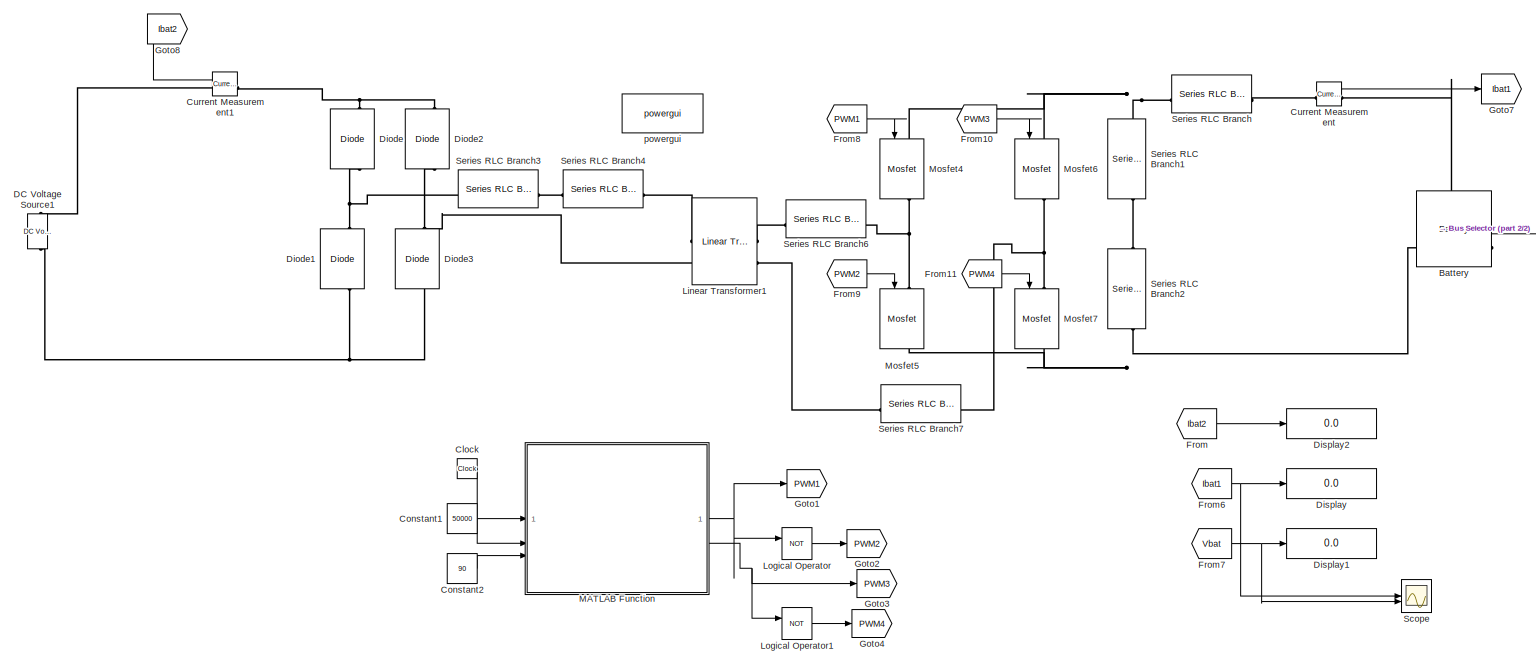
[diagram: root canvas - part 1/2, most of the canvas]
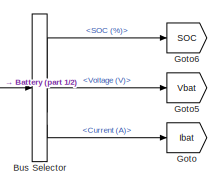
[diagram: root canvas - part 2/2, middle right region]
MODEL slx_e6c360ace916
KIND model
CONFIG AbsTol = auto
CONFIG EnableMultiTasking = off
CONFIG FixedStep = auto
CONFIG MaxStep = auto
CONFIG MinStep = auto
CONFIG RelTol = 1e-3
CONFIG SampleTimeConstraint = Unconstrained
CONFIG SolverName = VariableStepAuto
CONFIG StartTime = 0.0
CONFIG StopTime = 5
BLOCK [Reference] Battery  REF=spsBatteryLib/Battery
  LibrarySourceBlock = sps_lib/Sources/Battery
  NameLocation = top
  SourceBlock = spsBatteryLib/Battery
  SourceType = Battery
BLOCK [BusSelector] Bus Selector
  OutputSignals = SOC (%),Voltage (V),Current (A)
BLOCK [Clock] Clock
  Decimation = 1
BLOCK [Constant] Constant1
  Value = 50000
BLOCK [Constant] Constant2
  Value = 90
BLOCK [Reference] Current Measurement  REF=spsCurrentMeasurementLib/Current Measurement
  LibrarySourceBlock = sps_lib/Sensors and Measurements/Current Measurement
  SourceBlock = spsCurrentMeasurementLib/Current Measurement
  SourceType = Current Measurement
  UserDataPersistent = on
BLOCK [Reference] Current Measurement1  REF=spsCurrentMeasurementLib/Current Measurement
  LibrarySourceBlock = sps_lib/Sensors and Measurements/Current Measurement
  NameLocation = top
  SourceBlock = spsCurrentMeasurementLib/Current Measurement
  SourceType = Current Measurement
  UserDataPersistent = on
BLOCK [Reference] DC Voltage Source1  REF=spsDCVoltageSourceLib/DC Voltage Source
  LibrarySourceBlock = sps_lib/Sources/DC Voltage Source
  SourceBlock = spsDCVoltageSourceLib/DC Voltage Source
  SourceType = DC Voltage Source
BLOCK [Reference] Diode  REF=spsDiodeLib/Diode
  LibrarySourceBlock = sps_lib/Power Electronics/Diode
  NameLocation = right
  SourceBlock = spsDiodeLib/Diode
  SourceType = Diode
BLOCK [Reference] Diode1  REF=spsDiodeLib/Diode
  LibrarySourceBlock = sps_lib/Power Electronics/Diode
  NameLocation = right
  SourceBlock = spsDiodeLib/Diode
  SourceType = Diode
BLOCK [Reference] Diode2  REF=spsDiodeLib/Diode
  LibrarySourceBlock = sps_lib/Power Electronics/Diode
  NameLocation = right
  SourceBlock = spsDiodeLib/Diode
  SourceType = Diode
BLOCK [Reference] Diode3  REF=spsDiodeLib/Diode
  LibrarySourceBlock = sps_lib/Power Electronics/Diode
  NameLocation = right
  SourceBlock = spsDiodeLib/Diode
  SourceType = Diode
BLOCK [Display] Display
  Decimation = 1
BLOCK [Display] Display1
  Decimation = 1
BLOCK [Display] Display2
  Decimation = 1
BLOCK [From] From
  GotoTag = Ibat2
BLOCK [From] From10
  GotoTag = PWM3
BLOCK [From] From11
  GotoTag = PWM4
BLOCK [From] From6
  GotoTag = Ibat1
BLOCK [From] From7
  GotoTag = Vbat
BLOCK [From] From8
  GotoTag = PWM1
BLOCK [From] From9
  GotoTag = PWM2
BLOCK [Goto] Goto
  GotoTag = Ibat
BLOCK [Goto] Goto1
  GotoTag = PWM1
  NameLocation = left
BLOCK [Goto] Goto2
  GotoTag = PWM2
BLOCK [Goto] Goto3
  GotoTag = PWM3
BLOCK [Goto] Goto4
  GotoTag = PWM4
BLOCK [Goto] Goto5
  GotoTag = Vbat
BLOCK [Goto] Goto6
  GotoTag = SOC
BLOCK [Goto] Goto7
  GotoTag = Ibat1
BLOCK [Goto] Goto8
  GotoTag = Ibat2
BLOCK [Reference] Linear Transformer1  REF=spsLinearTransformerLib/Linear Transformer
  LibrarySourceBlock = sps_lib/Power Grid Elements/Linear Transformer
  SourceBlock = spsLinearTransformerLib/Linear Transformer
  SourceType = Linear Transformer
BLOCK [Logic] Logical Operator
  AllPortsSameDT = off
  Operator = NOT
  OutDataTypeStr = boolean
BLOCK [Logic] Logical Operator1
  AllPortsSameDT = off
  Operator = NOT
  OutDataTypeStr = boolean
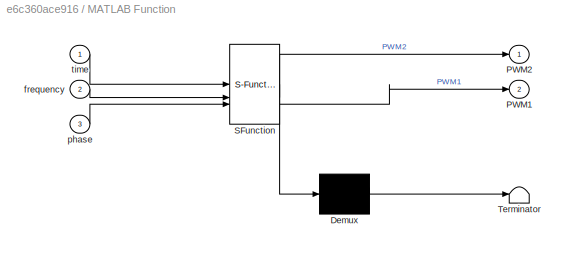
BLOCK [SubSystem] MATLAB Function
  ErrorFcn = Stateflow.Translate.translate
  PermitHierarchicalResolution = ExplicitOnly
  SFBlockType = MATLAB Function
  TreatAsAtomicUnit = on
BLOCK [Demux] MATLAB Function/ Demux 
  Outputs = 1
BLOCK [S-Function] MATLAB Function/ SFunction 
  EnableBusSupport = off
  FunctionName = sf_sfun
  PortCounts = [3 3]
  SFcnIsStateOwnerBlock = off
  SFunctionDeploymentMode = off
  Tag = Stateflow S-Function 2
BLOCK [Terminator] MATLAB Function/ Terminator 
BLOCK [Outport] MATLAB Function/PWM1
  Port = 2
BLOCK [Outport] MATLAB Function/PWM2
BLOCK [Inport] MATLAB Function/frequency
  Port = 2
BLOCK [Inport] MATLAB Function/phase
  Port = 3
BLOCK [Inport] MATLAB Function/time
BLOCK [Reference] Mosfet4  REF=spsMosfetLib/Mosfet
  LibrarySourceBlock = sps_lib/Power Electronics/Mosfet
  NameLocation = left
  SourceBlock = spsMosfetLib/Mosfet
  SourceType = Mosfet
BLOCK [Reference] Mosfet5  REF=spsMosfetLib/Mosfet
  LibrarySourceBlock = sps_lib/Power Electronics/Mosfet
  NameLocation = left
  SourceBlock = spsMosfetLib/Mosfet
  SourceType = Mosfet
BLOCK [Reference] Mosfet6  REF=spsMosfetLib/Mosfet
  LibrarySourceBlock = sps_lib/Power Electronics/Mosfet
  NameLocation = left
  SourceBlock = spsMosfetLib/Mosfet
  SourceType = Mosfet
BLOCK [Reference] Mosfet7  REF=spsMosfetLib/Mosfet
  LibrarySourceBlock = sps_lib/Power Electronics/Mosfet
  NameLocation = left
  SourceBlock = spsMosfetLib/Mosfet
  SourceType = Mosfet
BLOCK [Scope] Scope
  ActiveDisplayYMaximum = 12.866449511400653
  ActiveDisplayYMinimum = -5.8957654723127018
  Floating = off
  GraphicalSettings = {"AxesScalingProperties":{"AlignXAxis":"Center","AlignYAxis":"Center","AutoScaleXAxisLimits":false,"AxesScaling":"Manual","AxesScalingNumUpdates":10,"ExpandOnly":true,"ScaleAxesLimitsAtStop":false,"XAxisDataRange":100,"YAxisDataRange":80},"DisplayProperties":{"ColorOrder":["auto","auto","auto","auto","auto","auto","auto","auto","auto","auto","auto","auto","auto","auto","auto","auto","auto","auto",...<+1992ch>
  MultipleDisplayCache = [{"MaxYLimMag":10,"MaxYLimReal":12.866449511400653,"MinYLimMag":0,"MinYLimReal":-5.8957654723127018,"PlotAsMagnitudePhase":false,"ShowGrid":true,"ShowLegend":false,"Title":"%<SignalLabel>","YLabel":""}]
  NumInputPorts = 2
  ScopeFrameLocation = window
  WasSavedAsWebScope = on
  WindowPosition = [1.000000,41.000000,1366.000000,705.000000,]
BLOCK [Reference] Series RLC Branch  REF=spsSeriesRLCBranchLib/Series RLC Branch
  LibrarySourceBlock = sps_lib/Passives/Series RLC Branch
  SourceBlock = spsSeriesRLCBranchLib/Series RLC Branch
  SourceType = Series RLC Branch
BLOCK [Reference] Series RLC Branch1  REF=spsSeriesRLCBranchLib/Series RLC Branch
  LibrarySourceBlock = sps_lib/Passives/Series RLC Branch
  NameLocation = left
  SourceBlock = spsSeriesRLCBranchLib/Series RLC Branch
  SourceType = Series RLC Branch
BLOCK [Reference] Series RLC Branch2  REF=spsSeriesRLCBranchLib/Series RLC Branch
  LibrarySourceBlock = sps_lib/Passives/Series RLC Branch
  NameLocation = left
  SourceBlock = spsSeriesRLCBranchLib/Series RLC Branch
  SourceType = Series RLC Branch
BLOCK [Reference] Series RLC Branch3  REF=spsSeriesRLCBranchLib/Series RLC Branch
  LibrarySourceBlock = sps_lib/Passives/Series RLC Branch
  NameLocation = top
  SourceBlock = spsSeriesRLCBranchLib/Series RLC Branch
  SourceType = Series RLC Branch
BLOCK [Reference] Series RLC Branch4  REF=spsSeriesRLCBranchLib/Series RLC Branch
  LibrarySourceBlock = sps_lib/Passives/Series RLC Branch
  SourceBlock = spsSeriesRLCBranchLib/Series RLC Branch
  SourceType = Series RLC Branch
BLOCK [Reference] Series RLC Branch6  REF=spsSeriesRLCBranchLib/Series RLC Branch
  LibrarySourceBlock = sps_lib/Passives/Series RLC Branch
  NameLocation = top
  SourceBlock = spsSeriesRLCBranchLib/Series RLC Branch
  SourceType = Series RLC Branch
BLOCK [Reference] Series RLC Branch7  REF=spsSeriesRLCBranchLib/Series RLC Branch
  LibrarySourceBlock = sps_lib/Passives/Series RLC Branch
  NameLocation = top
  SourceBlock = spsSeriesRLCBranchLib/Series RLC Branch
  SourceType = Series RLC Branch
BLOCK [Reference] powergui  REF=sps_lib/powergui
  LibrarySourceBlock = sps_lib/powergui
  Priority = 1
  SourceBlock = sps_lib/powergui
  SourceType = PSB option menu block
LINE Battery:1 -> Bus Selector:1
LINE Bus Selector:1 -> Goto6:1
LINE Bus Selector:2 -> Goto5:1
LINE Bus Selector:3 -> Goto:1
LINE Clock:1 -> MATLAB Function:1
LINE Constant1:1 -> MATLAB Function:2
LINE Constant2:1 -> MATLAB Function:3
LINE Current Measurement1:1 -> Goto8:1
LINE Current Measurement:1 -> Goto7:1
LINE From10:1 -> Mosfet6:1
LINE From11:1 -> Mosfet7:1
NET From6:1 -> Display:1, Scope:1
NET From7:1 -> Display1:1, Scope:2
LINE From8:1 -> Mosfet4:1
LINE From9:1 -> Mosfet5:1
LINE From:1 -> Display2:1
LINE Logical Operator1:1 -> Goto4:1
LINE Logical Operator:1 -> Goto2:1
NET MATLAB Function:1 -> Goto1:1, Logical Operator:1
NET MATLAB Function:2 -> Goto3:1, Logical Operator1:1
PLINE Battery:LConn1 -- Current Measurement:RConn1
PNET net1: Battery:LConn2 -- Mosfet5:RConn1 -- Mosfet7:RConn1 -- Series RLC Branch2:RConn1
PNET net2: Current Measurement1:LConn1 -- Diode2:RConn1 -- Diode:RConn1
PLINE Current Measurement1:RConn1 -- DC Voltage Source1:RConn1
PLINE Current Measurement:LConn1 -- Series RLC Branch:RConn1
PNET net3: DC Voltage Source1:LConn1 -- Diode1:LConn1 -- Diode3:LConn1
PNET net4: Diode1:RConn1 -- Diode:LConn1 -- Series RLC Branch3:RConn1
PNET net5: Diode2:LConn1 -- Diode3:RConn1 -- Linear Transformer1:LConn2
PLINE Linear Transformer1:LConn1 -- Series RLC Branch4:RConn1
PLINE Linear Transformer1:RConn1 -- Series RLC Branch6:RConn1
PLINE Linear Transformer1:RConn2 -- Series RLC Branch7:RConn1
PNET net6: Mosfet4:LConn1 -- Mosfet6:LConn1 -- Series RLC Branch1:LConn1 -- Series RLC Branch:LConn1
PNET net7: Mosfet4:RConn1 -- Mosfet5:LConn1 -- Series RLC Branch6:LConn1
PNET net8: Mosfet6:RConn1 -- Mosfet7:LConn1 -- Series RLC Branch7:LConn1
PLINE Series RLC Branch1:RConn1 -- Series RLC Branch2:LConn1
PLINE Series RLC Branch3:LConn1 -- Series RLC Branch4:LConn1
note: NET lines group one-source signal fan-out (src -> all destinations, sorted); 1:1 wires keep LINE; PNET lines group multi-terminal physical nets as a canonical sorted terminal list (undirected conserving connections); 2-terminal nets keep the pairwise PLINE form
CHART MATLAB Function states=1 transitions=1
  STATE_LABEL 'eML_blk_kernel()'
  STATE_LABEL 'SCRIPT:\nfunction [PWM2, PWM1] = fcn (time, frequency, phase)\nTswitching = 1/frequency;\nPWM1 =0;\nPWM2 =0;\ny1 = mod (time, Tswitching) ;\nif y1 < Tswitching/2\n    PWM1 = 1;\nend\nt_phi = Tswitching*phase/360;\ny2 = mod (time+t_phi, Tswitching) ;\nif y2 < Tswitching/2\n    PWM2 = 1;\nend'
CHART  states=0 transitions=0
